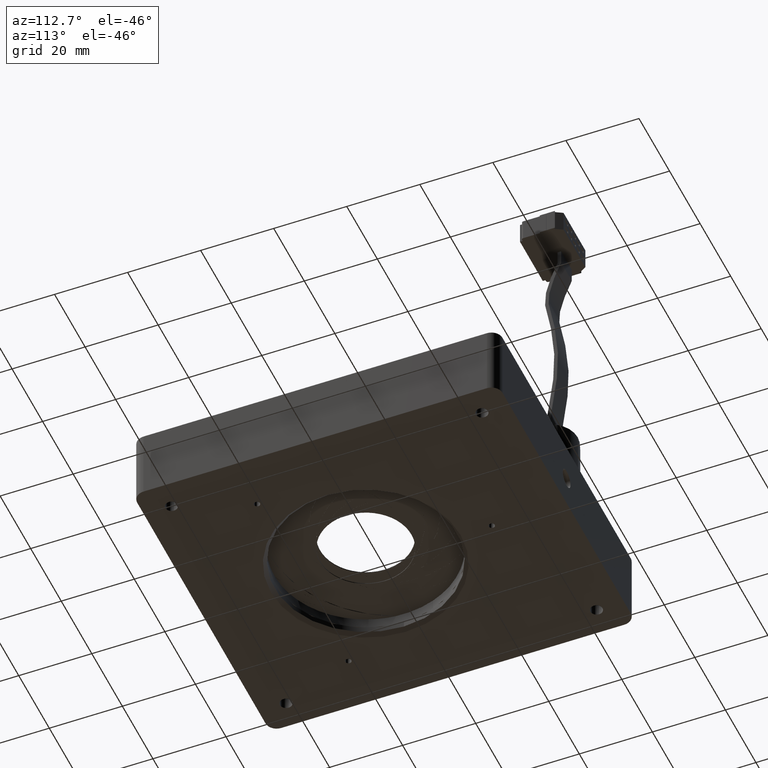
[diagram: clean part render]
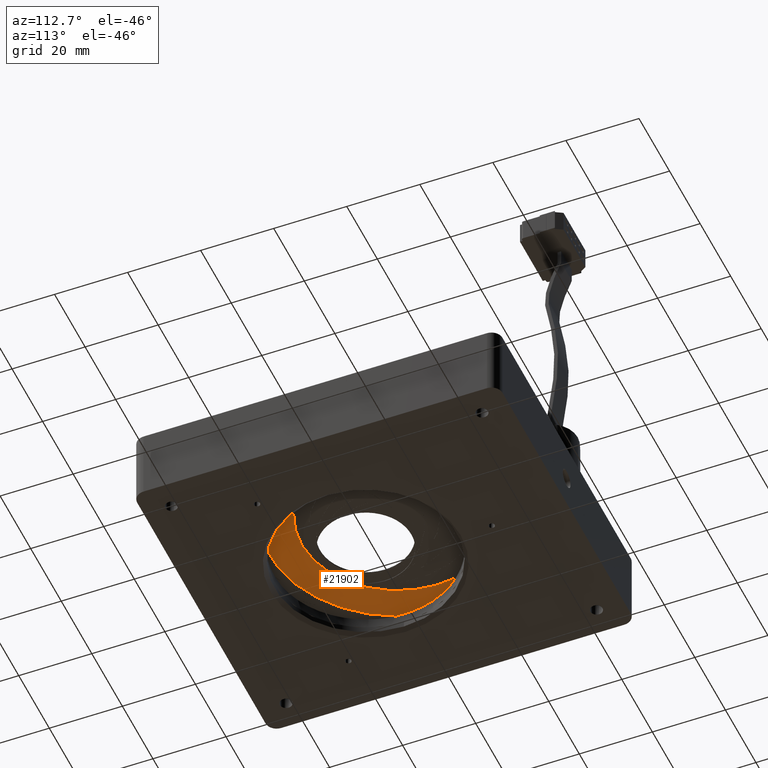
[diagram: same view with one face highlighted and labeled with its STEP entity id]
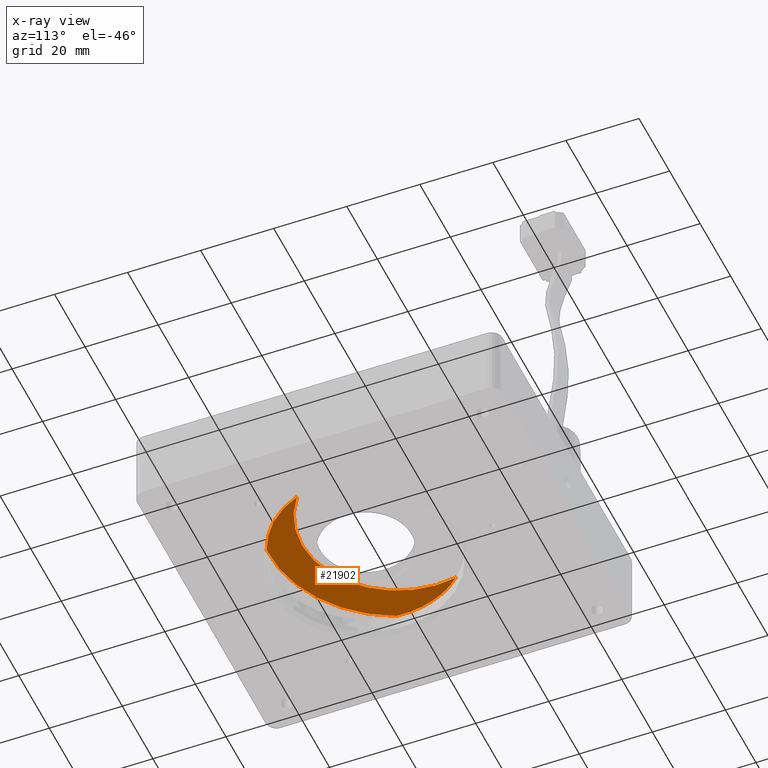
[diagram: x-ray of the same camera — body ghosted, the highlighted face saturated]
A machine part, auxiliary view. The second image highlights one B-rep face of the part: STEP entity #21902.
The next image is the same camera in x-ray: the body ghosted, the highlighted face saturated — about 0% of this face is hidden behind the body in this view.
In plain terms, the highlighted planar face has unit normal (-0, 0, 1).
Its self-contained STEP definition (entity closure, byte-faithful):
#532 = CARTESIAN_POINT ( 'NONE',  ( 6.087053219362808200E-015, -5.000000000000000000, -12.40000000000000200 ) ) ;
#1525 = AXIS2_PLACEMENT_3D ( 'NONE', #21051, #29411, #16901 ) ;
#1961 = AXIS2_PLACEMENT_3D ( 'NONE', #46931, #42274, #42799 ) ;
#2624 = AXIS2_PLACEMENT_3D ( 'NONE', #11736, #35776, #15331 ) ;
#2884 = AXIS2_PLACEMENT_3D ( 'NONE', #19050, #47751, #23175 ) ;
#3141 = AXIS2_PLACEMENT_3D ( 'NONE', #25798, #50889, #38163 ) ;
#3975 = VERTEX_POINT ( 'NONE', #10991 ) ;
#4300 = CARTESIAN_POINT ( 'NONE',  ( 6.087053219362808200E-015, -5.000000000000000000, -12.40000000000000200 ) ) ;
#4596 = VERTEX_POINT ( 'NONE', #34351 ) ;
#5817 = ORIENTED_EDGE ( 'NONE', *, *, #24443, .T. ) ;
#8237 = DIRECTION ( 'NONE',  ( -4.049638948671294400E-018, 1.425327888812758600E-016, 1.000000000000000000 ) ) ;
#8416 = DIRECTION ( 'NONE',  ( -0.9396926207859057600, 0.3420201433256758700, 0.0000000000000000000 ) ) ;
#9642 = ORIENTED_EDGE ( 'NONE', *, *, #48791, .F. ) ;
#10991 = CARTESIAN_POINT ( 'NONE',  ( -8.634816484502295000, -14.03824896088671000, -12.40000000000000000 ) ) ;
#11736 = CARTESIAN_POINT ( 'NONE',  ( 7.365937532903346100, 6.787964172664281600, -12.40000000000000400 ) ) ;
#14053 = CIRCLE ( 'NONE', #2624, 35.18469103851373300 ) ;
#14166 = CARTESIAN_POINT ( 'NONE',  ( -24.94337578885982500, -7.142963870786526400, -12.40000000000002500 ) ) ;
#14240 = ORIENTED_EDGE ( 'NONE', *, *, #19706, .F. ) ;
#14825 = ORIENTED_EDGE ( 'NONE', *, *, #44746, .T. ) ;
#15331 = DIRECTION ( 'NONE',  ( -0.9396926207859058700, 0.3420201433256759300, -4.930335963666557500E-017 ) ) ;
#16706 = PLANE ( 'NONE',  #25150 ) ;
#16843 = DIRECTION ( 'NONE',  ( -4.049638948671294400E-018, 1.425327888812758600E-016, 1.000000000000000000 ) ) ;
#16901 = DIRECTION ( 'NONE',  ( -0.9396926207859056500, 0.3420201433256759300, -6.929120813801653000E-017 ) ) ;
#17443 = DIRECTION ( 'NONE',  ( -0.9396926207859058700, 0.3420201433256759300, -5.255450071869759100E-017 ) ) ;
#18125 = CARTESIAN_POINT ( 'NONE',  ( -18.37391006745452100, 12.00481457496291600, -12.40000000000000400 ) ) ;
#18538 = EDGE_CURVE ( 'NONE', #20549, #46684, #37838, .T. ) ;
#18607 = EDGE_LOOP ( 'NONE', ( #14825, #9642, #14240, #29491, #27306, #5817, #32660 ) ) ;
#18991 = FACE_OUTER_BOUND ( 'NONE', #18607, .T. ) ;
#19050 = CARTESIAN_POINT ( 'NONE',  ( 7.365937532903346100, 6.787964172664281600, -12.40000000000000400 ) ) ;
#19706 = EDGE_CURVE ( 'NONE', #42088, #36886, #14053, .T. ) ;
#20549 = VERTEX_POINT ( 'NONE', #18125 ) ;
#21051 = CARTESIAN_POINT ( 'NONE',  ( 6.087053219362808200E-015, -5.000000000000000000, -12.40000000000000200 ) ) ;
#21902 = ADVANCED_FACE ( 'NONE', ( #18991 ), #16706, .F. ) ;
#23175 = DIRECTION ( 'NONE',  ( -0.9396926207859057600, 0.3420201433256759800, -6.605150813491152800E-017 ) ) ;
#23191 = CARTESIAN_POINT ( 'NONE',  ( -23.52544995654527300, 3.562563531901807900, -12.40000000000000400 ) ) ;
#23232 = EDGE_CURVE ( 'NONE', #46684, #42088, #30960, .T. ) ;
#24443 = EDGE_CURVE ( 'NONE', #20549, #3975, #32159, .T. ) ;
#25150 = AXIS2_PLACEMENT_3D ( 'NONE', #532, #37869, #17443 ) ;
#25798 = CARTESIAN_POINT ( 'NONE',  ( 6.087053219362808200E-015, -5.000000000000000000, -12.40000000000000200 ) ) ;
#27306 = ORIENTED_EDGE ( 'NONE', *, *, #18538, .F. ) ;
#28657 = DIRECTION ( 'NONE',  ( -0.9396926207859056500, 0.3420201433256759300, -6.929120813801653000E-017 ) ) ;
#29411 = DIRECTION ( 'NONE',  ( -4.049638948671294400E-018, 1.425327888812758600E-016, 1.000000000000000000 ) ) ;
#29491 = ORIENTED_EDGE ( 'NONE', *, *, #23232, .F. ) ;
#30960 = CIRCLE ( 'NONE', #34774, 25.03526093125014300 ) ;
#32159 = CIRCLE ( 'NONE', #2884, 26.26319254412177500 ) ;
#32277 = EDGE_CURVE ( 'NONE', #3975, #48501, #34514, .T. ) ;
#32660 = ORIENTED_EDGE ( 'NONE', *, *, #32277, .T. ) ;
#34351 = CARTESIAN_POINT ( 'NONE',  ( 23.33841812566718600, -14.05994090970305200, -12.40000000000000000 ) ) ;
#34514 = CIRCLE ( 'NONE', #46134, 12.50000000000008700 ) ;
#34774 = AXIS2_PLACEMENT_3D ( 'NONE', #41413, #16843, #28657 ) ;
#35776 = DIRECTION ( 'NONE',  ( -4.049638948671294400E-018, 1.425327888812758600E-016, 1.000000000000000000 ) ) ;
#36886 = VERTEX_POINT ( 'NONE', #50051 ) ;
#37838 = CIRCLE ( 'NONE', #1525, 25.03526093125014300 ) ;
#37869 = DIRECTION ( 'NONE',  ( -4.049638948672907600E-018, 1.425327888812764300E-016, 1.000000000000000000 ) ) ;
#38163 = DIRECTION ( 'NONE',  ( -0.9396926207859056500, 0.3420201433256759300, -6.929120813801653000E-017 ) ) ;
#38763 = CIRCLE ( 'NONE', #3141, 25.03526093125014300 ) ;
#40409 = CIRCLE ( 'NONE', #1961, 26.26319254412177500 ) ;
#41413 = CARTESIAN_POINT ( 'NONE',  ( 6.087053219362808200E-015, -5.000000000000000000, -12.40000000000000200 ) ) ;
#42088 = VERTEX_POINT ( 'NONE', #14166 ) ;
#42274 = DIRECTION ( 'NONE',  ( -4.049638948671265100E-018, 1.425327888812757800E-016, 1.000000000000000000 ) ) ;
#42799 = DIRECTION ( 'NONE',  ( -0.9396926207859057600, 0.3420201433256759800, -6.605150813491152800E-017 ) ) ;
#43897 = CARTESIAN_POINT ( 'NONE',  ( -4.338269950390430700, -16.72302920910555800, -12.40000000000000000 ) ) ;
#44746 = EDGE_CURVE ( 'NONE', #48501, #4596, #40409, .T. ) ;
#46134 = AXIS2_PLACEMENT_3D ( 'NONE', #4300, #8237, #8416 ) ;
#46684 = VERTEX_POINT ( 'NONE', #23191 ) ;
#46931 = CARTESIAN_POINT ( 'NONE',  ( 7.365937532903346100, 6.787964172664281600, -12.40000000000000400 ) ) ;
#47751 = DIRECTION ( 'NONE',  ( -4.049638948671265100E-018, 1.425327888812757800E-016, 1.000000000000000000 ) ) ;
#48501 = VERTEX_POINT ( 'NONE', #43897 ) ;
#48791 = EDGE_CURVE ( 'NONE', #36886, #4596, #38763, .T. ) ;
#50051 = CARTESIAN_POINT ( 'NONE',  ( 9.008373080856252100, -28.35837118319455600, -12.39999999999999900 ) ) ;
#50889 = DIRECTION ( 'NONE',  ( -4.049638948671294400E-018, 1.425327888812758600E-016, 1.000000000000000000 ) ) ;